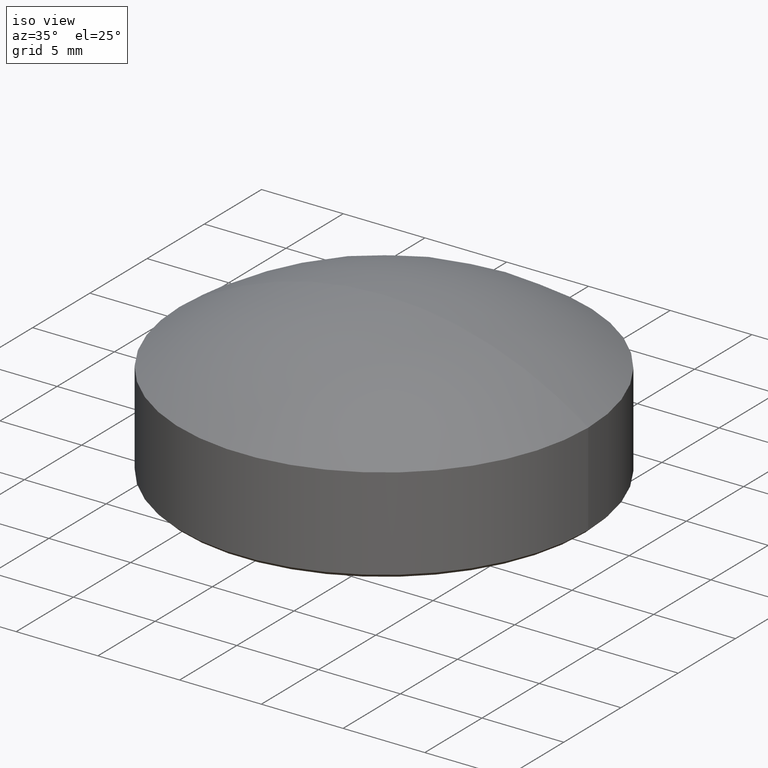
[diagram: clean part render]
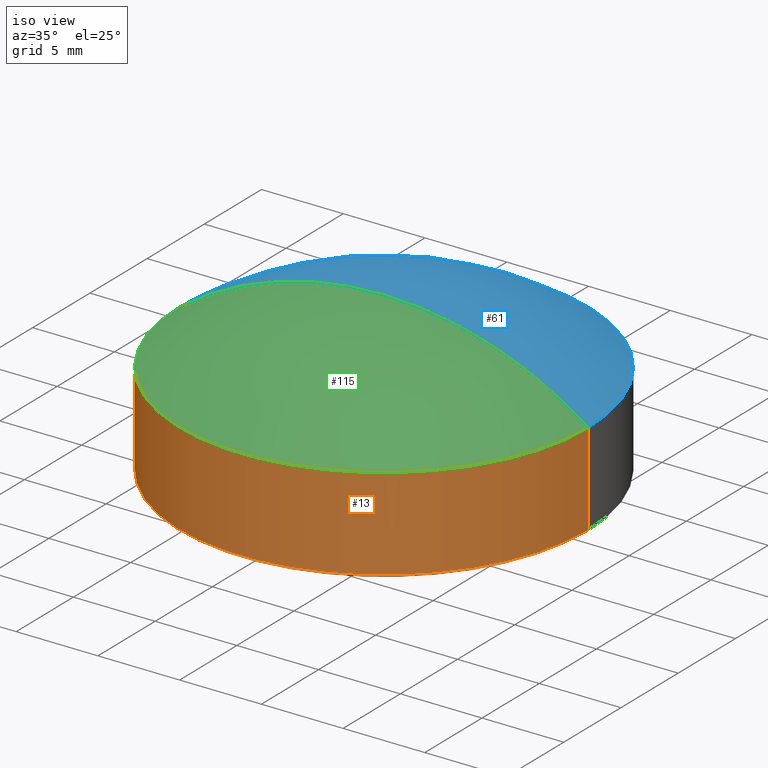
[diagram: same view with three faces highlighted in distinct colors, each labeled with its STEP entity id]
A machine part, iso view with three faces highlighted in distinct colors.
Their STEP definitions:

[orange] entity #13 — the highlighted cylindrical surface (partial cylindrical patch) has radius 12.5 mm, axis along (-0, -0, -1).
#1 = CYLINDRICAL_SURFACE ( 'NONE', #111, 12.50000000000000000 ) ;
#4 = CARTESIAN_POINT ( 'NONE',  ( 0.000000000000000000, 0.000000000000000000, 0.2000000000000178857 ) ) ;
#13 = ADVANCED_FACE ( 'NONE', ( #144 ), #1, .T. ) ;
#16 = VERTEX_POINT ( 'NONE', #179 ) ;
#20 = DIRECTION ( 'NONE',  ( 1.000000000000000000, 0.000000000000000000, 0.000000000000000000 ) ) ;
#23 = CIRCLE ( 'NONE', #139, 12.50000000000000000 ) ;
#33 = VERTEX_POINT ( 'NONE', #161 ) ;
#36 = LINE ( 'NONE', #166, #108 ) ;
#40 = CARTESIAN_POINT ( 'NONE',  ( -12.50000000000000000, 0.000000000000000000, 5.860000000000000320 ) ) ;
#43 = VERTEX_POINT ( 'NONE', #100 ) ;
#53 = ORIENTED_EDGE ( 'NONE', *, *, #191, .F. ) ;
#62 = CIRCLE ( 'NONE', #211, 12.50000000000000000 ) ;
#69 = ORIENTED_EDGE ( 'NONE', *, *, #122, .T. ) ;
#74 = DIRECTION ( 'NONE',  ( -0.000000000000000000, -0.000000000000000000, -1.000000000000000000 ) ) ;
#81 = EDGE_LOOP ( 'NONE', ( #53, #131, #69, #171 ) ) ;
#86 = DIRECTION ( 'NONE',  ( -0.000000000000000000, -0.000000000000000000, 1.000000000000000000 ) ) ;
#98 = VECTOR ( 'NONE', #133, 1000.000000000000000 ) ;
#100 = CARTESIAN_POINT ( 'NONE',  ( -12.50000000000000000, 0.000000000000000000, 0.2000000000000178857 ) ) ;
#108 = VECTOR ( 'NONE', #74, 1000.000000000000000 ) ;
#111 = AXIS2_PLACEMENT_3D ( 'NONE', #176, #175, #194 ) ;
#120 = CARTESIAN_POINT ( 'NONE',  ( 0.000000000000000000, 0.000000000000000000, 5.860000000000000320 ) ) ;
#122 = EDGE_CURVE ( 'NONE', #145, #43, #137, .T. ) ;
#124 = CARTESIAN_POINT ( 'NONE',  ( -12.50000000000000000, 0.000000000000000000, 5.860000000000000320 ) ) ;
#131 = ORIENTED_EDGE ( 'NONE', *, *, #204, .F. ) ;
#133 = DIRECTION ( 'NONE',  ( -0.000000000000000000, -0.000000000000000000, -1.000000000000000000 ) ) ;
#134 = DIRECTION ( 'NONE',  ( 1.000000000000000000, 0.000000000000000000, 0.000000000000000000 ) ) ;
#137 = LINE ( 'NONE', #40, #98 ) ;
#139 = AXIS2_PLACEMENT_3D ( 'NONE', #120, #181, #20 ) ;
#144 = FACE_OUTER_BOUND ( 'NONE', #81, .T. ) ;
#145 = VERTEX_POINT ( 'NONE', #124 ) ;
#161 = CARTESIAN_POINT ( 'NONE',  ( 12.50000000000000000, 1.530808498934191127E-15, 0.2000000000000178857 ) ) ;
#166 = CARTESIAN_POINT ( 'NONE',  ( 12.50000000000000000, 1.530808498934191127E-15, 5.860000000000000320 ) ) ;
#171 = ORIENTED_EDGE ( 'NONE', *, *, #180, .T. ) ;
#175 = DIRECTION ( 'NONE',  ( -0.000000000000000000, -0.000000000000000000, -1.000000000000000000 ) ) ;
#176 = CARTESIAN_POINT ( 'NONE',  ( 0.000000000000000000, 0.000000000000000000, 5.860000000000000320 ) ) ;
#179 = CARTESIAN_POINT ( 'NONE',  ( 12.50000000000000000, 1.530808498934191127E-15, 5.860000000000000320 ) ) ;
#180 = EDGE_CURVE ( 'NONE', #43, #33, #62, .T. ) ;
#181 = DIRECTION ( 'NONE',  ( 0.000000000000000000, 0.000000000000000000, 1.000000000000000000 ) ) ;
#191 = EDGE_CURVE ( 'NONE', #16, #33, #36, .T. ) ;
#194 = DIRECTION ( 'NONE',  ( -1.000000000000000000, 0.000000000000000000, 0.000000000000000000 ) ) ;
#204 = EDGE_CURVE ( 'NONE', #145, #16, #23, .T. ) ;
#211 = AXIS2_PLACEMENT_3D ( 'NONE', #4, #86, #134 ) ;

[blue] entity #61 — the highlighted spherical surface has radius 21.5313 mm.
#6 = CIRCLE ( 'NONE', #128, 21.53125000000000711 ) ;
#10 = AXIS2_PLACEMENT_3D ( 'NONE', #162, #55, #121 ) ;
#16 = VERTEX_POINT ( 'NONE', #179 ) ;
#21 = CIRCLE ( 'NONE', #49, 12.50000000000000000 ) ;
#45 = AXIS2_PLACEMENT_3D ( 'NONE', #156, #94, #95 ) ;
#48 = SPHERICAL_SURFACE ( 'NONE', #45, 21.53125000000000711 ) ;
#49 = AXIS2_PLACEMENT_3D ( 'NONE', #195, #66, #84 ) ;
#55 = DIRECTION ( 'NONE',  ( -1.224646799147353207E-16, -1.000000000000000000, -0.000000000000000000 ) ) ;
#59 = DIRECTION ( 'NONE',  ( 0.000000000000000000, 1.000000000000000000, 0.000000000000000000 ) ) ;
#61 = ADVANCED_FACE ( 'NONE', ( #65 ), #48, .T. ) ;
#63 = VERTEX_POINT ( 'NONE', #159 ) ;
#65 = FACE_OUTER_BOUND ( 'NONE', #85, .T. ) ;
#66 = DIRECTION ( 'NONE',  ( 0.000000000000000000, 0.000000000000000000, 1.000000000000000000 ) ) ;
#77 = EDGE_CURVE ( 'NONE', #16, #145, #21, .T. ) ;
#82 = ORIENTED_EDGE ( 'NONE', *, *, #136, .T. ) ;
#84 = DIRECTION ( 'NONE',  ( 1.000000000000000000, 0.000000000000000000, 0.000000000000000000 ) ) ;
#85 = EDGE_LOOP ( 'NONE', ( #189, #126, #82 ) ) ;
#94 = DIRECTION ( 'NONE',  ( -0.000000000000000000, -1.000000000000000000, 0.000000000000000000 ) ) ;
#95 = DIRECTION ( 'NONE',  ( -1.000000000000000000, 0.000000000000000000, 0.000000000000000000 ) ) ;
#103 = CIRCLE ( 'NONE', #10, 21.53125000000000711 ) ;
#121 = DIRECTION ( 'NONE',  ( 1.000000000000000000, -1.224646799147353207E-16, 0.000000000000000000 ) ) ;
#124 = CARTESIAN_POINT ( 'NONE',  ( -12.50000000000000000, 0.000000000000000000, 5.860000000000000320 ) ) ;
#126 = ORIENTED_EDGE ( 'NONE', *, *, #77, .T. ) ;
#128 = AXIS2_PLACEMENT_3D ( 'NONE', #207, #59, #151 ) ;
#136 = EDGE_CURVE ( 'NONE', #145, #63, #6, .T. ) ;
#145 = VERTEX_POINT ( 'NONE', #124 ) ;
#151 = DIRECTION ( 'NONE',  ( 0.000000000000000000, 0.000000000000000000, 1.000000000000000000 ) ) ;
#156 = CARTESIAN_POINT ( 'NONE',  ( 0.000000000000000000, 0.000000000000000000, -11.67125000000001123 ) ) ;
#159 = CARTESIAN_POINT ( 'NONE',  ( -1.318408819707072946E-15, 0.000000000000000000, 9.859999999999997655 ) ) ;
#162 = CARTESIAN_POINT ( 'NONE',  ( 0.000000000000000000, 0.000000000000000000, -11.67125000000001123 ) ) ;
#179 = CARTESIAN_POINT ( 'NONE',  ( 12.50000000000000000, 1.530808498934191127E-15, 5.860000000000000320 ) ) ;
#189 = ORIENTED_EDGE ( 'NONE', *, *, #208, .F. ) ;
#195 = CARTESIAN_POINT ( 'NONE',  ( 0.000000000000000000, 0.000000000000000000, 5.860000000000000320 ) ) ;
#207 = CARTESIAN_POINT ( 'NONE',  ( 0.000000000000000000, 0.000000000000000000, -11.67125000000001123 ) ) ;
#208 = EDGE_CURVE ( 'NONE', #16, #63, #103, .T. ) ;

[green] entity #115 — the highlighted spherical surface has radius 21.5313 mm.
#6 = CIRCLE ( 'NONE', #128, 21.53125000000000711 ) ;
#10 = AXIS2_PLACEMENT_3D ( 'NONE', #162, #55, #121 ) ;
#16 = VERTEX_POINT ( 'NONE', #179 ) ;
#20 = DIRECTION ( 'NONE',  ( 1.000000000000000000, 0.000000000000000000, 0.000000000000000000 ) ) ;
#23 = CIRCLE ( 'NONE', #139, 12.50000000000000000 ) ;
#27 = EDGE_LOOP ( 'NONE', ( #92, #198, #147 ) ) ;
#55 = DIRECTION ( 'NONE',  ( -1.224646799147353207E-16, -1.000000000000000000, -0.000000000000000000 ) ) ;
#59 = DIRECTION ( 'NONE',  ( 0.000000000000000000, 1.000000000000000000, 0.000000000000000000 ) ) ;
#63 = VERTEX_POINT ( 'NONE', #159 ) ;
#71 = DIRECTION ( 'NONE',  ( -1.000000000000000000, 0.000000000000000000, 0.000000000000000000 ) ) ;
#73 = CARTESIAN_POINT ( 'NONE',  ( 0.000000000000000000, 0.000000000000000000, -11.67125000000001123 ) ) ;
#92 = ORIENTED_EDGE ( 'NONE', *, *, #204, .T. ) ;
#103 = CIRCLE ( 'NONE', #10, 21.53125000000000711 ) ;
#115 = ADVANCED_FACE ( 'NONE', ( #118 ), #163, .T. ) ;
#118 = FACE_OUTER_BOUND ( 'NONE', #27, .T. ) ;
#120 = CARTESIAN_POINT ( 'NONE',  ( 0.000000000000000000, 0.000000000000000000, 5.860000000000000320 ) ) ;
#121 = DIRECTION ( 'NONE',  ( 1.000000000000000000, -1.224646799147353207E-16, 0.000000000000000000 ) ) ;
#124 = CARTESIAN_POINT ( 'NONE',  ( -12.50000000000000000, 0.000000000000000000, 5.860000000000000320 ) ) ;
#128 = AXIS2_PLACEMENT_3D ( 'NONE', #207, #59, #151 ) ;
#136 = EDGE_CURVE ( 'NONE', #145, #63, #6, .T. ) ;
#139 = AXIS2_PLACEMENT_3D ( 'NONE', #120, #181, #20 ) ;
#145 = VERTEX_POINT ( 'NONE', #124 ) ;
#147 = ORIENTED_EDGE ( 'NONE', *, *, #136, .F. ) ;
#151 = DIRECTION ( 'NONE',  ( 0.000000000000000000, 0.000000000000000000, 1.000000000000000000 ) ) ;
#159 = CARTESIAN_POINT ( 'NONE',  ( -1.318408819707072946E-15, 0.000000000000000000, 9.859999999999997655 ) ) ;
#162 = CARTESIAN_POINT ( 'NONE',  ( 0.000000000000000000, 0.000000000000000000, -11.67125000000001123 ) ) ;
#163 = SPHERICAL_SURFACE ( 'NONE', #182, 21.53125000000000711 ) ;
#179 = CARTESIAN_POINT ( 'NONE',  ( 12.50000000000000000, 1.530808498934191127E-15, 5.860000000000000320 ) ) ;
#181 = DIRECTION ( 'NONE',  ( 0.000000000000000000, 0.000000000000000000, 1.000000000000000000 ) ) ;
#182 = AXIS2_PLACEMENT_3D ( 'NONE', #73, #184, #71 ) ;
#184 = DIRECTION ( 'NONE',  ( -0.000000000000000000, -1.000000000000000000, 0.000000000000000000 ) ) ;
#198 = ORIENTED_EDGE ( 'NONE', *, *, #208, .T. ) ;
#204 = EDGE_CURVE ( 'NONE', #145, #16, #23, .T. ) ;
#207 = CARTESIAN_POINT ( 'NONE',  ( 0.000000000000000000, 0.000000000000000000, -11.67125000000001123 ) ) ;
#208 = EDGE_CURVE ( 'NONE', #16, #63, #103, .T. ) ;